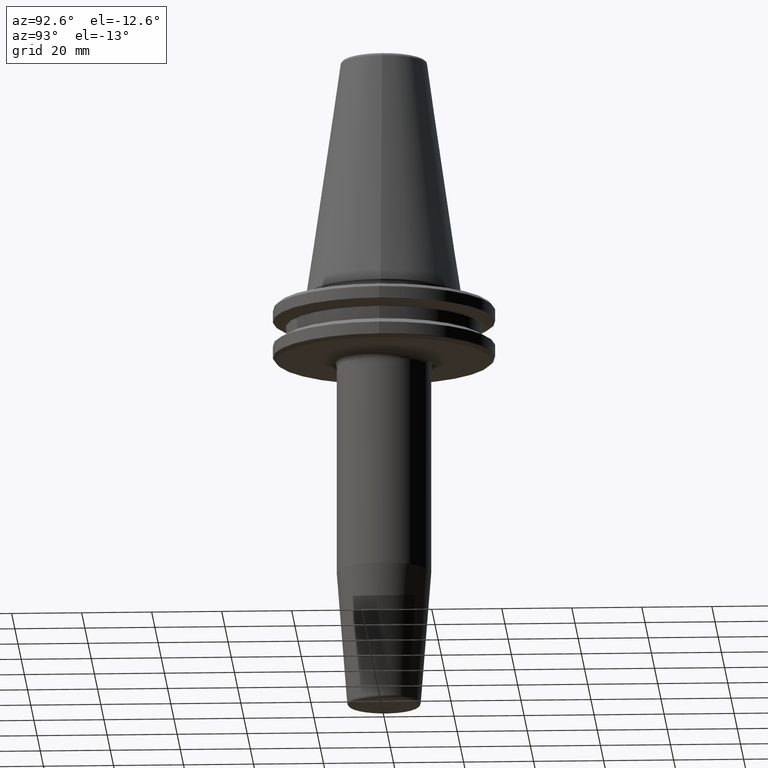
[diagram: clean part render]
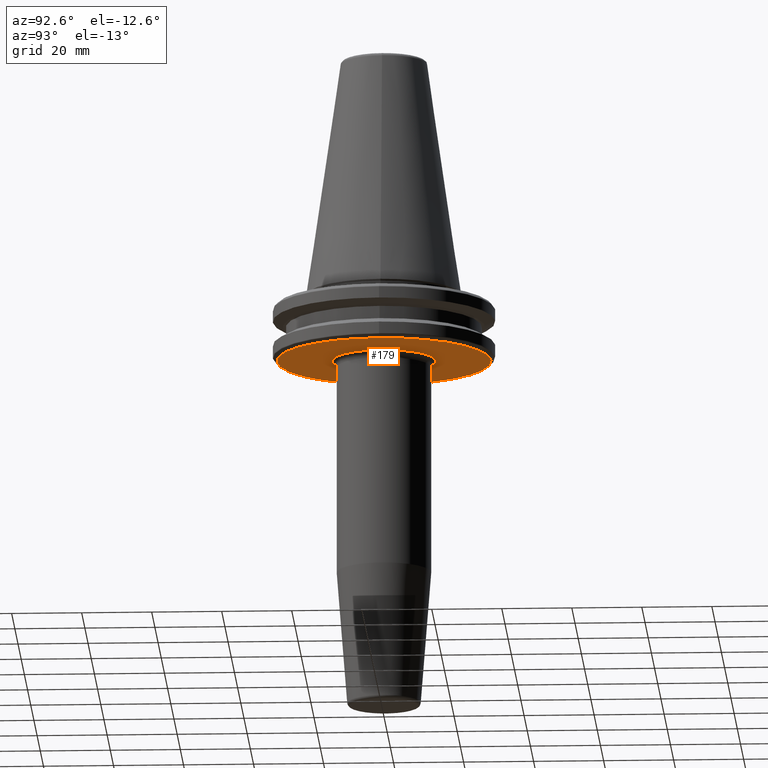
[diagram: same view with one face highlighted and labeled with its STEP entity id]
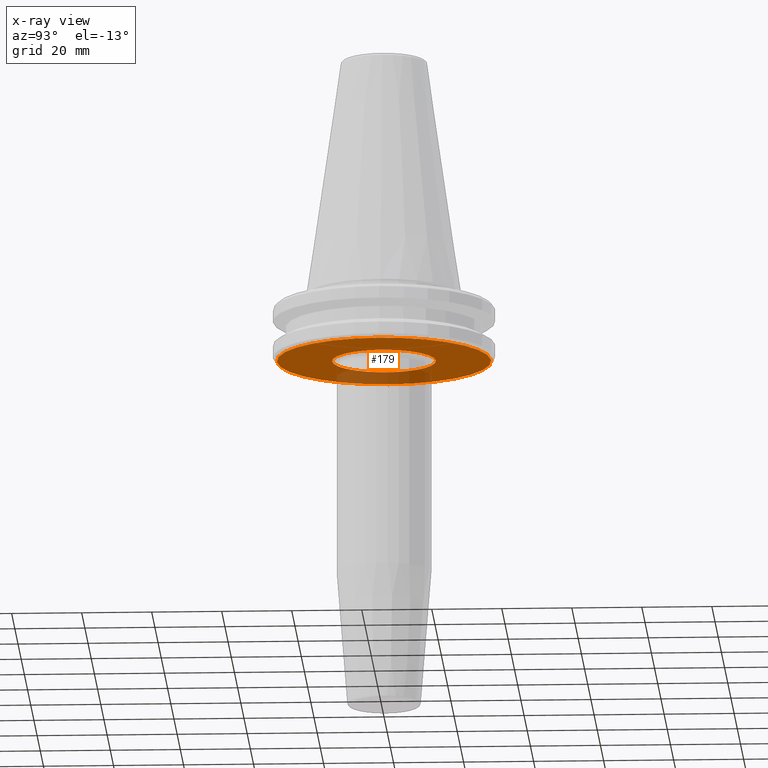
[diagram: x-ray of the same camera — body ghosted, the highlighted face saturated]
A machine part, auxiliary view. The second image highlights one B-rep face of the part: STEP entity #179.
The next image is the same camera in x-ray: the body ghosted, the highlighted face saturated — about 19% of this face is hidden behind the body in this view.
In plain terms, the highlighted planar face has unit normal (0, 0, -1).
Its self-contained STEP definition (entity closure, byte-faithful):
#53 = CARTESIAN_POINT ( 'NONE',  ( 0.0000000000000000000, 0.0000000000000000000, -19.10000000000000500 ) ) ;
#118 = CARTESIAN_POINT ( 'NONE',  ( 0.0000000000000000000, -1.734723475976807100E-014, -19.10000000000000500 ) ) ;
#137 = PLANE ( 'NONE',  #1232 ) ;
#139 = DIRECTION ( 'NONE',  ( -0.0000000000000000000, -0.0000000000000000000, 1.000000000000000000 ) ) ;
#143 = DIRECTION ( 'NONE',  ( -0.0000000000000000000, -0.0000000000000000000, 1.000000000000000000 ) ) ;
#162 = DIRECTION ( 'NONE',  ( 0.0000000000000000000, 0.0000000000000000000, -1.000000000000000000 ) ) ;
#179 = ADVANCED_FACE ( 'NONE', ( #1098, #811 ), #137, .T. ) ;
#219 = DIRECTION ( 'NONE',  ( 1.000000000000000000, 0.0000000000000000000, 0.0000000000000000000 ) ) ;
#252 = DIRECTION ( 'NONE',  ( 1.000000000000000000, 0.0000000000000000000, 0.0000000000000000000 ) ) ;
#285 = DIRECTION ( 'NONE',  ( 1.000000000000000000, 0.0000000000000000000, 0.0000000000000000000 ) ) ;
#305 = CARTESIAN_POINT ( 'NONE',  ( 0.0000000000000000000, 14.82553478956933200, -19.10000000000000500 ) ) ;
#313 = CIRCLE ( 'NONE', #463, 14.82553478956935100 ) ;
#317 = CARTESIAN_POINT ( 'NONE',  ( 1.815604372569384400E-015, -14.82553478956937500, -19.10000000000000500 ) ) ;
#340 = CARTESIAN_POINT ( 'NONE',  ( 0.0000000000000000000, 2.166680460328873200E-015, -19.10000000000000500 ) ) ;
#351 = CIRCLE ( 'NONE', #553, 30.58431457505076500 ) ;
#361 = ORIENTED_EDGE ( 'NONE', *, *, #657, .F. ) ;
#431 = EDGE_CURVE ( 'NONE', #459, #898, #962, .T. ) ;
#445 = DIRECTION ( 'NONE',  ( 0.0000000000000000000, 0.0000000000000000000, -1.000000000000000000 ) ) ;
#459 = VERTEX_POINT ( 'NONE', #1166 ) ;
#463 = AXIS2_PLACEMENT_3D ( 'NONE', #767, #162, #285 ) ;
#466 = EDGE_LOOP ( 'NONE', ( #1039, #835 ) ) ;
#544 = VERTEX_POINT ( 'NONE', #305 ) ;
#545 = DIRECTION ( 'NONE',  ( -1.000000000000000000, 0.0000000000000000000, -0.0000000000000000000 ) ) ;
#553 = AXIS2_PLACEMENT_3D ( 'NONE', #53, #143, #252 ) ;
#608 = VERTEX_POINT ( 'NONE', #317 ) ;
#635 = EDGE_LOOP ( 'NONE', ( #668, #361 ) ) ;
#657 = EDGE_CURVE ( 'NONE', #898, #459, #351, .T. ) ;
#662 = EDGE_CURVE ( 'NONE', #544, #608, #313, .T. ) ;
#668 = ORIENTED_EDGE ( 'NONE', *, *, #431, .F. ) ;
#767 = CARTESIAN_POINT ( 'NONE',  ( 0.0000000000000000000, -1.734723475976807100E-014, -19.10000000000000500 ) ) ;
#773 = EDGE_CURVE ( 'NONE', #608, #544, #1151, .T. ) ;
#807 = DIRECTION ( 'NONE',  ( 0.0000000000000000000, 0.0000000000000000000, -1.000000000000000000 ) ) ;
#811 = FACE_OUTER_BOUND ( 'NONE', #635, .T. ) ;
#835 = ORIENTED_EDGE ( 'NONE', *, *, #773, .F. ) ;
#898 = VERTEX_POINT ( 'NONE', #920 ) ;
#912 = DIRECTION ( 'NONE',  ( 1.000000000000000000, 0.0000000000000000000, 0.0000000000000000000 ) ) ;
#920 = CARTESIAN_POINT ( 'NONE',  ( -30.58431457505076500, 3.762817415969875600E-015, -19.10000000000000500 ) ) ;
#962 = CIRCLE ( 'NONE', #1197, 30.58431457505076500 ) ;
#1012 = CARTESIAN_POINT ( 'NONE',  ( 0.0000000000000000000, 0.0000000000000000000, -19.10000000000000500 ) ) ;
#1039 = ORIENTED_EDGE ( 'NONE', *, *, #662, .F. ) ;
#1092 = AXIS2_PLACEMENT_3D ( 'NONE', #118, #807, #219 ) ;
#1098 = FACE_BOUND ( 'NONE', #466, .T. ) ;
#1151 = CIRCLE ( 'NONE', #1092, 14.82553478956935100 ) ;
#1166 = CARTESIAN_POINT ( 'NONE',  ( 30.58431457505076500, 0.0000000000000000000, -19.10000000000000500 ) ) ;
#1197 = AXIS2_PLACEMENT_3D ( 'NONE', #1012, #139, #912 ) ;
#1232 = AXIS2_PLACEMENT_3D ( 'NONE', #340, #445, #545 ) ;